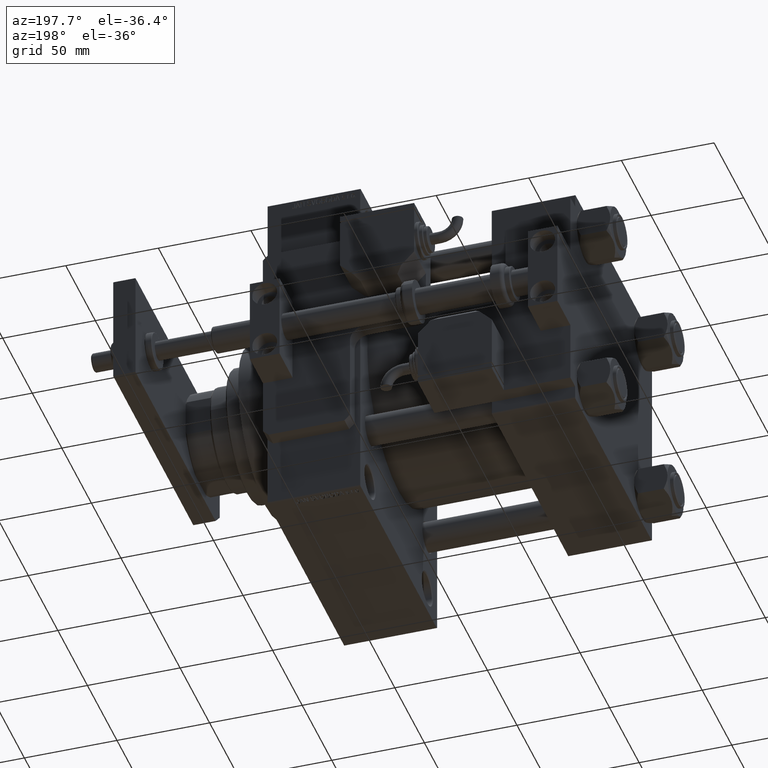
[diagram: clean part render]
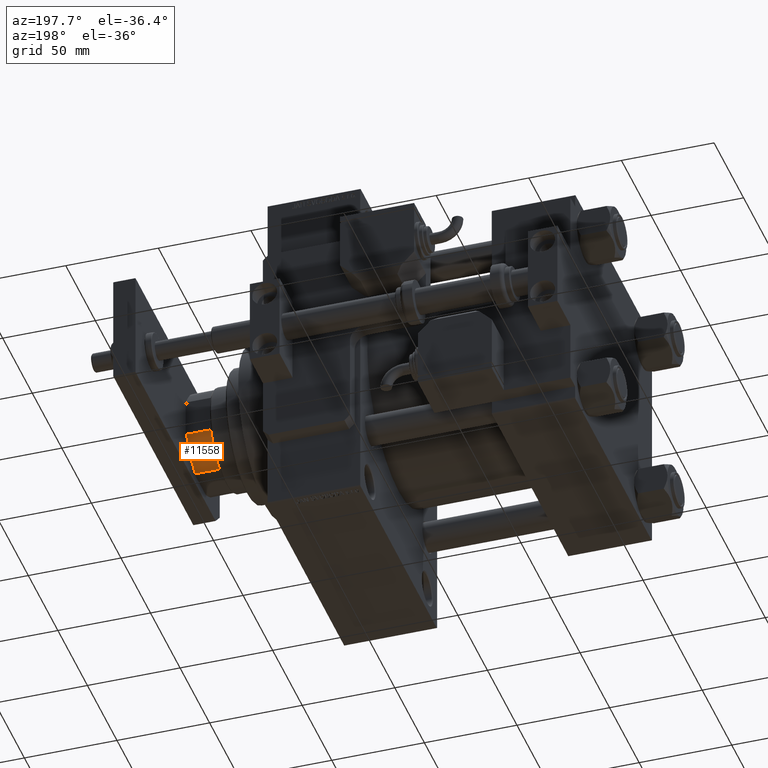
[diagram: same view with one face highlighted and labeled with its STEP entity id]
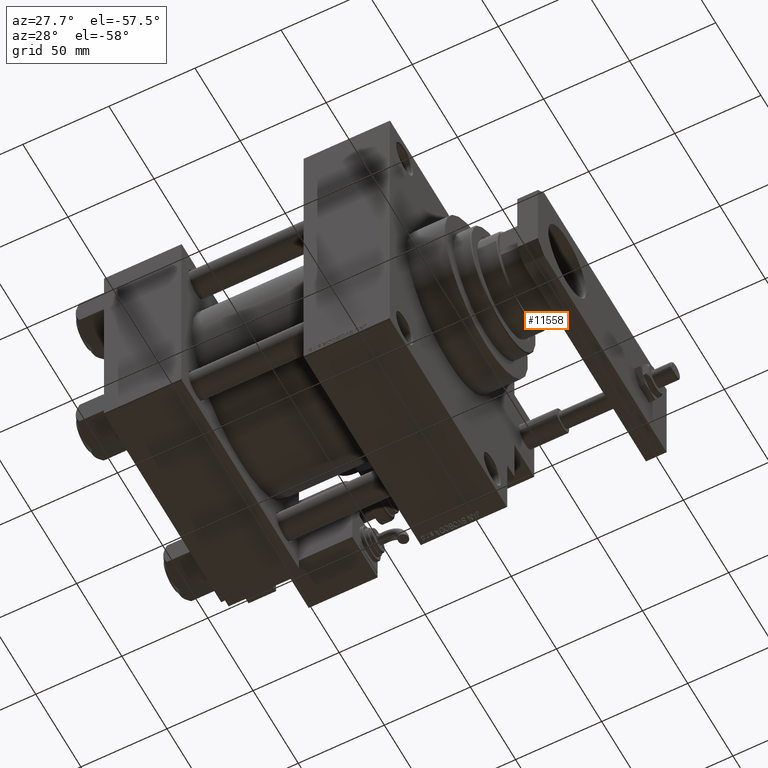
[diagram: same view with one face highlighted and labeled with its STEP entity id]
A machine part, auxiliary view. The second image highlights one B-rep face of the part: STEP entity #11558.
A second angle (auxiliary view) of the same face is appended — the face is thin or edge-on in the first view.
In plain terms, the highlighted cylindrical surface (partial cylindrical patch) has radius 27 mm, axis along (1, 0, 0).
Its self-contained STEP definition (entity closure, byte-faithful):
#1055 = ORIENTED_EDGE ( 'NONE', *, *, #45342, .T. ) ;
#1242 = EDGE_CURVE ( 'NONE', #21678, #14820, #30771, .T. ) ;
#1691 = EDGE_CURVE ( 'NONE', #8506, #14820, #2527, .T. ) ;
#2527 = LINE ( 'NONE', #35769, #29064 ) ;
#2773 = ORIENTED_EDGE ( 'NONE', *, *, #1242, .T. ) ;
#3465 = EDGE_LOOP ( 'NONE', ( #1055, #2773, #32738, #19811 ) ) ;
#4310 = DIRECTION ( 'NONE',  ( -0.000000000000000000, -0.000000000000000000, -1.000000000000000000 ) ) ;
#5905 = EDGE_CURVE ( 'NONE', #8506, #47725, #24075, .T. ) ;
#6679 = FACE_OUTER_BOUND ( 'NONE', #3465, .T. ) ;
#8506 = VERTEX_POINT ( 'NONE', #39928 ) ;
#9439 = CARTESIAN_POINT ( 'NONE',  ( 0.000000000000000000, 0.000000000000000000, 177.5000000000000284 ) ) ;
#9679 = CYLINDRICAL_SURFACE ( 'NONE', #53462, 27.00000000000000355 ) ;
#11558 = ADVANCED_FACE ( 'NONE', ( #6679 ), #9679, .T. ) ;
#14535 = DIRECTION ( 'NONE',  ( -0.000000000000000000, -0.000000000000000000, 1.000000000000000000 ) ) ;
#14820 = VERTEX_POINT ( 'NONE', #39807 ) ;
#16770 = CARTESIAN_POINT ( 'NONE',  ( -25.00000000000000711, 10.19803902718556188, 164.4999999999999716 ) ) ;
#19753 = AXIS2_PLACEMENT_3D ( 'NONE', #51289, #26986, #46696 ) ;
#19811 = ORIENTED_EDGE ( 'NONE', *, *, #5905, .T. ) ;
#21678 = VERTEX_POINT ( 'NONE', #38887 ) ;
#23078 = DIRECTION ( 'NONE',  ( -0.000000000000000000, -0.000000000000000000, 1.000000000000000000 ) ) ;
#24075 = CIRCLE ( 'NONE', #19753, 27.00000000000000355 ) ;
#26015 = CARTESIAN_POINT ( 'NONE',  ( -25.00000000000000711, 10.19803902718555833, -0.001000000000001000089 ) ) ;
#26986 = DIRECTION ( 'NONE',  ( -0.000000000000000000, -0.000000000000000000, 1.000000000000000000 ) ) ;
#29064 = VECTOR ( 'NONE', #23078, 1000.000000000000000 ) ;
#30771 = CIRCLE ( 'NONE', #45440, 27.00000000000000355 ) ;
#31370 = DIRECTION ( 'NONE',  ( -0.000000000000000000, -0.000000000000000000, 1.000000000000000000 ) ) ;
#32738 = ORIENTED_EDGE ( 'NONE', *, *, #1691, .F. ) ;
#35080 = CARTESIAN_POINT ( 'NONE',  ( 0.000000000000000000, 0.000000000000000000, -0.001000000000001000089 ) ) ;
#35769 = CARTESIAN_POINT ( 'NONE',  ( -10.19803902718557431, 25.00000000000000000, -0.001000000000001000089 ) ) ;
#38887 = CARTESIAN_POINT ( 'NONE',  ( -25.00000000000000711, 10.19803902718555833, 177.5000000000000284 ) ) ;
#39807 = CARTESIAN_POINT ( 'NONE',  ( -10.19803902718557431, 25.00000000000000000, 177.5000000000000284 ) ) ;
#39928 = CARTESIAN_POINT ( 'NONE',  ( -10.19803902718557786, 25.00000000000000000, 164.4999999999999716 ) ) ;
#45342 = EDGE_CURVE ( 'NONE', #47725, #21678, #50321, .T. ) ;
#45440 = AXIS2_PLACEMENT_3D ( 'NONE', #9439, #4310, #46178 ) ;
#46178 = DIRECTION ( 'NONE',  ( 1.000000000000000000, 1.776356839400250465E-15, 0.000000000000000000 ) ) ;
#46696 = DIRECTION ( 'NONE',  ( -1.000000000000000000, 8.881784197001252323E-16, 0.000000000000000000 ) ) ;
#47725 = VERTEX_POINT ( 'NONE', #16770 ) ;
#50321 = LINE ( 'NONE', #26015, #50549 ) ;
#50549 = VECTOR ( 'NONE', #31370, 1000.000000000000000 ) ;
#50729 = DIRECTION ( 'NONE',  ( 1.000000000000000000, 0.000000000000000000, 0.000000000000000000 ) ) ;
#51289 = CARTESIAN_POINT ( 'NONE',  ( 0.000000000000000000, 0.000000000000000000, 164.4999999999999716 ) ) ;
#53462 = AXIS2_PLACEMENT_3D ( 'NONE', #35080, #14535, #50729 ) ;